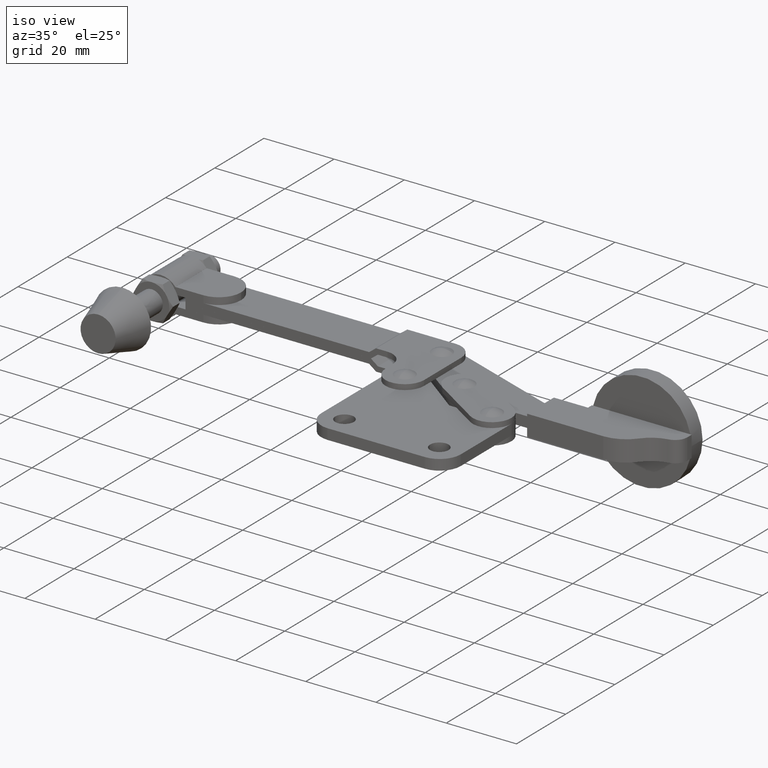
[diagram: clean part render]
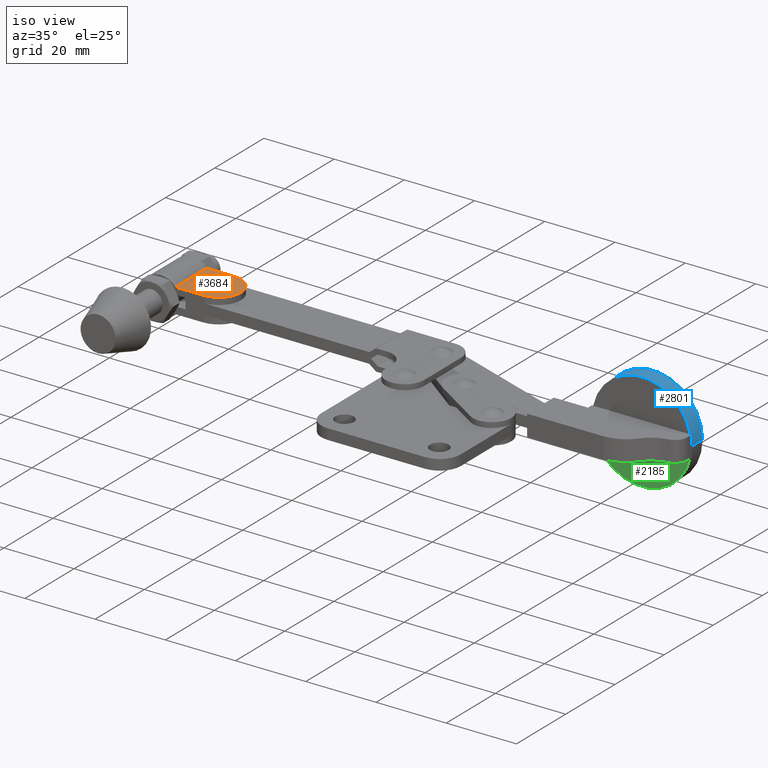
[diagram: same view with three faces highlighted in distinct colors, each labeled with its STEP entity id]
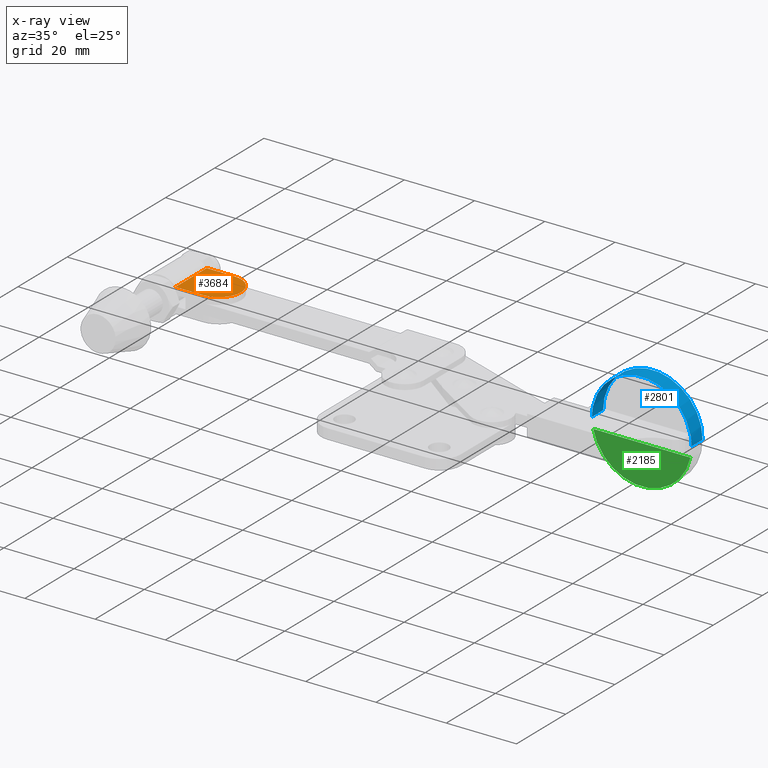
[diagram: x-ray of the same camera — body ghosted, the three highlighted faces saturated]
A machine part, iso view with three faces highlighted in distinct colors.
The next image is the same camera in x-ray (body ghosted, the three faces saturated) — at least one of them is partly hidden behind the body in this view.
Their STEP definitions:

[orange] entity #3684 — the highlighted planar face has unit normal (-0, 0, -1).
#173 = VECTOR ( 'NONE', #4438, 1000.000000000000100 ) ;
#267 = DIRECTION ( 'NONE',  ( -0.9999999999999914500, -1.302476991090160100E-007, 0.0000000000000000000 ) ) ;
#285 = LINE ( 'NONE', #8092, #173 ) ;
#293 = DIRECTION ( 'NONE',  ( 1.236869100494374900E-023, -9.695778398624800900E-017, 1.000000000000000000 ) ) ;
#687 = CARTESIAN_POINT ( 'NONE',  ( -89.47350454792540100, 31.74999280075318400, 3.499999999999985800 ) ) ;
#1053 = LINE ( 'NONE', #5328, #7953 ) ;
#1080 = PLANE ( 'NONE',  #2244 ) ;
#1320 = AXIS2_PLACEMENT_3D ( 'NONE', #5652, #5277, #5004 ) ;
#1617 = EDGE_CURVE ( 'NONE', #3179, #6758, #285, .T. ) ;
#2101 = AXIS2_PLACEMENT_3D ( 'NONE', #7766, #293, #267 ) ;
#2244 = AXIS2_PLACEMENT_3D ( 'NONE', #3580, #3192, #2470 ) ;
#2465 = VERTEX_POINT ( 'NONE', #4057 ) ;
#2470 = DIRECTION ( 'NONE',  ( -0.9999999999999914500, -1.302476995568923600E-007, -2.346680514848811100E-032 ) ) ;
#2585 = EDGE_CURVE ( 'NONE', #3179, #7504, #1053, .T. ) ;
#2839 = EDGE_CURVE ( 'NONE', #2465, #4750, #7274, .T. ) ;
#2859 = DIRECTION ( 'NONE',  ( 0.9999999999999914500, 1.302476995568923600E-007, 2.346680514848811100E-032 ) ) ;
#2976 = CARTESIAN_POINT ( 'NONE',  ( -95.82350537499823400, 38.09999197368024700, 3.499999999999986200 ) ) ;
#3087 = DIRECTION ( 'NONE',  ( 1.302476995568923600E-007, -0.9999999999999914500, -9.695778398624884700E-017 ) ) ;
#3179 = VERTEX_POINT ( 'NONE', #8218 ) ;
#3187 = ORIENTED_EDGE ( 'NONE', *, *, #2585, .T. ) ;
#3192 = DIRECTION ( 'NONE',  ( -1.262852829487619900E-023, 9.695778398624798400E-017, -1.000000000000000000 ) ) ;
#3580 = CARTESIAN_POINT ( 'NONE',  ( -104.8112277148297800, 38.09999080305008300, 3.499999999999986200 ) ) ;
#3684 = ADVANCED_FACE ( 'NONE', ( #7442 ), #1080, .F. ) ;
#3883 = ORIENTED_EDGE ( 'NONE', *, *, #1617, .F. ) ;
#3885 = EDGE_CURVE ( 'NONE', #4750, #6758, #4825, .T. ) ;
#4057 = CARTESIAN_POINT ( 'NONE',  ( -95.82350372085245700, 25.39999197368034700, 3.499999999999985300 ) ) ;
#4438 = DIRECTION ( 'NONE',  ( 0.9999999999999914500, 1.302476995568923600E-007, 2.346680514848811100E-032 ) ) ;
#4750 = VERTEX_POINT ( 'NONE', #687 ) ;
#4825 = CIRCLE ( 'NONE', #2101, 6.349999999999993400 ) ;
#4884 = LINE ( 'NONE', #7437, #8260 ) ;
#5004 = DIRECTION ( 'NONE',  ( -0.9999999999999914500, -1.302476991090160100E-007, 0.0000000000000000000 ) ) ;
#5241 = ORIENTED_EDGE ( 'NONE', *, *, #3885, .T. ) ;
#5277 = DIRECTION ( 'NONE',  ( 1.236869100494374900E-023, -9.695778398624800900E-017, 1.000000000000000000 ) ) ;
#5328 = CARTESIAN_POINT ( 'NONE',  ( -103.7214470499043100, 38.09999094499151100, 3.499999999999986200 ) ) ;
#5652 = CARTESIAN_POINT ( 'NONE',  ( -95.82350454792533900, 31.74999197368029500, 3.499999999999985800 ) ) ;
#6758 = VERTEX_POINT ( 'NONE', #2976 ) ;
#6808 = ORIENTED_EDGE ( 'NONE', *, *, #2839, .T. ) ;
#6861 = EDGE_CURVE ( 'NONE', #7504, #2465, #4884, .T. ) ;
#7034 = EDGE_LOOP ( 'NONE', ( #7414, #6808, #5241, #3883, #3187 ) ) ;
#7274 = CIRCLE ( 'NONE', #1320, 6.349999999999993400 ) ;
#7414 = ORIENTED_EDGE ( 'NONE', *, *, #6861, .T. ) ;
#7437 = CARTESIAN_POINT ( 'NONE',  ( -104.8112260606839900, 25.39999080305019100, 3.499999999999985300 ) ) ;
#7442 = FACE_OUTER_BOUND ( 'NONE', #7034, .T. ) ;
#7504 = VERTEX_POINT ( 'NONE', #7617 ) ;
#7617 = CARTESIAN_POINT ( 'NONE',  ( -103.7214453957585400, 25.39999094499161800, 3.499999999999985300 ) ) ;
#7766 = CARTESIAN_POINT ( 'NONE',  ( -95.82350454792533900, 31.74999197368029500, 3.499999999999985800 ) ) ;
#7953 = VECTOR ( 'NONE', #3087, 1000.000000000000100 ) ;
#8092 = CARTESIAN_POINT ( 'NONE',  ( -104.8112277148297800, 38.09999080305008300, 3.499999999999986200 ) ) ;
#8218 = CARTESIAN_POINT ( 'NONE',  ( -103.7214470499043100, 38.09999094499151100, 3.499999999999986200 ) ) ;
#8260 = VECTOR ( 'NONE', #2859, 1000.000000000000100 ) ;

[blue] entity #2801 — the highlighted cylindrical surface (partial cylindrical patch) has radius 14.16 mm, axis along (-0.0008, 1, 0).
#57 = VERTEX_POINT ( 'NONE', #3387 ) ;
#121 = CIRCLE ( 'NONE', #1833, 14.16000000000013700 ) ;
#693 = CARTESIAN_POINT ( 'NONE',  ( 11.38169471949809100, 32.70000000000001000, 2.776157412436530100E-014 ) ) ;
#997 = ORIENTED_EDGE ( 'NONE', *, *, #3476, .T. ) ;
#1035 = LINE ( 'NONE', #4866, #4521 ) ;
#1100 = CARTESIAN_POINT ( 'NONE',  ( 39.38024955734181300, 28.20000000000000600, 3.000000000000000000 ) ) ;
#1364 = DIRECTION ( 'NONE',  ( -1.665334536937733300E-016, 1.000000000000000000, -2.953327212804751300E-022 ) ) ;
#1402 = CARTESIAN_POINT ( 'NONE',  ( 39.70169471949836300, 28.20000000000000600, 2.949567465645658800E-014 ) ) ;
#1689 = CARTESIAN_POINT ( 'NONE',  ( 25.54169471949822800, 28.20000000000000300, 2.776157545336254000E-014 ) ) ;
#1816 = DIRECTION ( 'NONE',  ( -1.665334536937733300E-016, 1.000000000000000000, -2.953327212804751300E-022 ) ) ;
#1833 = AXIS2_PLACEMENT_3D ( 'NONE', #1689, #1972, #1957 ) ;
#1957 = DIRECTION ( 'NONE',  ( -1.000000000000000000, -2.450174401097161600E-016, 0.0000000000000000000 ) ) ;
#1972 = DIRECTION ( 'NONE',  ( -1.665334536937733300E-016, 1.000000000000000000, -2.953327212804751700E-022 ) ) ;
#2019 = DIRECTION ( 'NONE',  ( -1.665334536937733300E-016, 1.000000000000000000, -2.953327212804751700E-022 ) ) ;
#2091 = CIRCLE ( 'NONE', #2492, 14.16000000000013700 ) ;
#2232 = CARTESIAN_POINT ( 'NONE',  ( 11.70313988165464600, 28.20000000000000300, 3.000000000000000000 ) ) ;
#2455 = EDGE_CURVE ( 'NONE', #7119, #7260, #2091, .T. ) ;
#2492 = AXIS2_PLACEMENT_3D ( 'NONE', #8236, #2019, #4544 ) ;
#2801 = ADVANCED_FACE ( 'NONE', ( #6564 ), #8049, .T. ) ;
#3102 = AXIS2_PLACEMENT_3D ( 'NONE', #3576, #8079, #4233 ) ;
#3239 = ORIENTED_EDGE ( 'NONE', *, *, #3689, .T. ) ;
#3387 = CARTESIAN_POINT ( 'NONE',  ( 11.38169471949809100, 28.19999999999999900, 2.776157478886391900E-014 ) ) ;
#3462 = AXIS2_PLACEMENT_3D ( 'NONE', #6475, #4240, #6905 ) ;
#3476 = EDGE_CURVE ( 'NONE', #7527, #3760, #7844, .T. ) ;
#3576 = CARTESIAN_POINT ( 'NONE',  ( 25.54169471949822800, 28.20000000000000300, 2.776157545336254000E-014 ) ) ;
#3689 = EDGE_CURVE ( 'NONE', #3793, #7527, #121, .T. ) ;
#3760 = VERTEX_POINT ( 'NONE', #1402 ) ;
#3793 = VERTEX_POINT ( 'NONE', #2232 ) ;
#3876 = EDGE_LOOP ( 'NONE', ( #997, #5619, #4297, #7138, #6431, #3239 ) ) ;
#4147 = VECTOR ( 'NONE', #1816, 1000.000000000000000 ) ;
#4233 = DIRECTION ( 'NONE',  ( 1.000000000000000000, 2.450174401097161600E-016, 0.0000000000000000000 ) ) ;
#4240 = DIRECTION ( 'NONE',  ( -1.527045313359872400E-016, 1.000000000000000000, -0.0000000000000000000 ) ) ;
#4297 = ORIENTED_EDGE ( 'NONE', *, *, #2455, .F. ) ;
#4521 = VECTOR ( 'NONE', #6795, 1000.000000000000000 ) ;
#4544 = DIRECTION ( 'NONE',  ( -1.000000000000000000, 0.0000000000000000000, 0.0000000000000000000 ) ) ;
#4546 = DIRECTION ( 'NONE',  ( -1.000000000000000000, -2.450174401097161600E-016, 0.0000000000000000000 ) ) ;
#4866 = CARTESIAN_POINT ( 'NONE',  ( 39.70169471949836300, 28.20000000000000600, 2.949567532095520600E-014 ) ) ;
#5165 = CIRCLE ( 'NONE', #3102, 14.16000000000013700 ) ;
#5619 = ORIENTED_EDGE ( 'NONE', *, *, #6136, .T. ) ;
#5719 = LINE ( 'NONE', #5754, #4147 ) ;
#5754 = CARTESIAN_POINT ( 'NONE',  ( 11.38169471949809100, 28.19999999999999900, 2.776157545336254000E-014 ) ) ;
#6136 = EDGE_CURVE ( 'NONE', #3760, #7260, #1035, .T. ) ;
#6431 = ORIENTED_EDGE ( 'NONE', *, *, #6692, .T. ) ;
#6475 = CARTESIAN_POINT ( 'NONE',  ( 25.54169471949822800, 28.20000000000000300, 2.776157545336254000E-014 ) ) ;
#6564 = FACE_OUTER_BOUND ( 'NONE', #3876, .T. ) ;
#6692 = EDGE_CURVE ( 'NONE', #57, #3793, #5165, .T. ) ;
#6795 = DIRECTION ( 'NONE',  ( -1.665334536937733300E-016, 1.000000000000000000, -2.953327212804751300E-022 ) ) ;
#6801 = EDGE_CURVE ( 'NONE', #57, #7119, #5719, .T. ) ;
#6905 = DIRECTION ( 'NONE',  ( 1.000000000000000000, 2.450174401097161600E-016, 8.881784197001252300E-016 ) ) ;
#6913 = CARTESIAN_POINT ( 'NONE',  ( 25.54169471949822800, 28.20000000000000300, 2.776157545336254000E-014 ) ) ;
#7119 = VERTEX_POINT ( 'NONE', #693 ) ;
#7138 = ORIENTED_EDGE ( 'NONE', *, *, #6801, .F. ) ;
#7160 = AXIS2_PLACEMENT_3D ( 'NONE', #6913, #1364, #4546 ) ;
#7260 = VERTEX_POINT ( 'NONE', #7316 ) ;
#7316 = CARTESIAN_POINT ( 'NONE',  ( 39.70169471949836300, 32.70000000000001000, 2.949567465645658800E-014 ) ) ;
#7527 = VERTEX_POINT ( 'NONE', #1100 ) ;
#7844 = CIRCLE ( 'NONE', #3462, 14.16000000000013700 ) ;
#8049 = CYLINDRICAL_SURFACE ( 'NONE', #7160, 14.16000000000013700 ) ;
#8079 = DIRECTION ( 'NONE',  ( -1.527045313359872400E-016, 1.000000000000000000, -0.0000000000000000000 ) ) ;
#8236 = CARTESIAN_POINT ( 'NONE',  ( 25.54169471949822800, 32.70000000000001000, 2.776157412436530100E-014 ) ) ;

[green] entity #2185 — the highlighted planar face has unit normal (-0.0008, 1, 0).
#487 = AXIS2_PLACEMENT_3D ( 'NONE', #3430, #6951, #6112 ) ;
#596 = PLANE ( 'NONE',  #487 ) ;
#854 = FACE_OUTER_BOUND ( 'NONE', #6234, .T. ) ;
#869 = DIRECTION ( 'NONE',  ( -1.000000000000000000, -1.527045313359872400E-016, -0.0000000000000000000 ) ) ;
#920 = CARTESIAN_POINT ( 'NONE',  ( 39.38024955734180600, 28.20000000000000600, -3.000000000000000000 ) ) ;
#1405 = CARTESIAN_POINT ( 'NONE',  ( 25.54169471949822800, 28.20000000000000300, 2.776157545336254000E-014 ) ) ;
#1800 = AXIS2_PLACEMENT_3D ( 'NONE', #1405, #5998, #2071 ) ;
#2071 = DIRECTION ( 'NONE',  ( -1.000000000000000000, -2.450174401097161600E-016, 0.0000000000000000000 ) ) ;
#2185 = ADVANCED_FACE ( 'NONE', ( #854 ), #596, .F. ) ;
#3430 = CARTESIAN_POINT ( 'NONE',  ( 25.54169471949822800, 28.20000000000000300, 2.776157545336254000E-014 ) ) ;
#4761 = CIRCLE ( 'NONE', #1800, 14.16000000000013700 ) ;
#4811 = CARTESIAN_POINT ( 'NONE',  ( 11.34169471949857800, 28.20000000000000300, -3.000000000000000000 ) ) ;
#4973 = VERTEX_POINT ( 'NONE', #920 ) ;
#5398 = EDGE_CURVE ( 'NONE', #4973, #5814, #4761, .T. ) ;
#5678 = ORIENTED_EDGE ( 'NONE', *, *, #5398, .F. ) ;
#5814 = VERTEX_POINT ( 'NONE', #5849 ) ;
#5849 = CARTESIAN_POINT ( 'NONE',  ( 11.70313988165465700, 28.20000000000000300, -3.000000000000000000 ) ) ;
#5998 = DIRECTION ( 'NONE',  ( -1.665334536937733300E-016, 1.000000000000000000, -2.953327212804751700E-022 ) ) ;
#6112 = DIRECTION ( 'NONE',  ( -1.000000000000000000, -1.665334536937733300E-016, 0.0000000000000000000 ) ) ;
#6234 = EDGE_LOOP ( 'NONE', ( #6621, #5678 ) ) ;
#6621 = ORIENTED_EDGE ( 'NONE', *, *, #8280, .T. ) ;
#6951 = DIRECTION ( 'NONE',  ( -1.665334536937733300E-016, 1.000000000000000000, -2.953327212804751700E-022 ) ) ;
#7337 = LINE ( 'NONE', #4811, #7554 ) ;
#7554 = VECTOR ( 'NONE', #869, 1000.000000000000000 ) ;
#8280 = EDGE_CURVE ( 'NONE', #4973, #5814, #7337, .T. ) ;